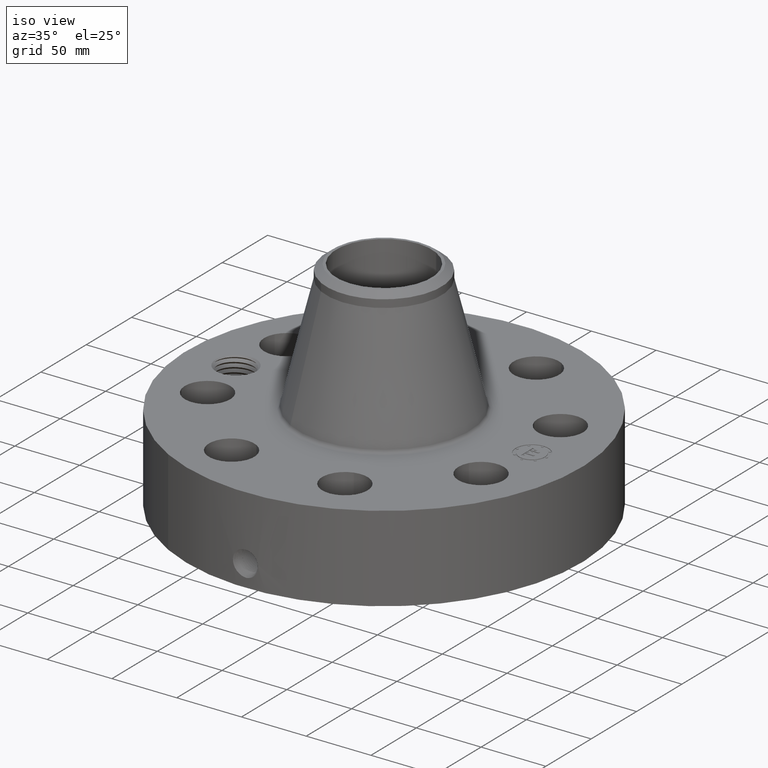
[diagram: clean part render]
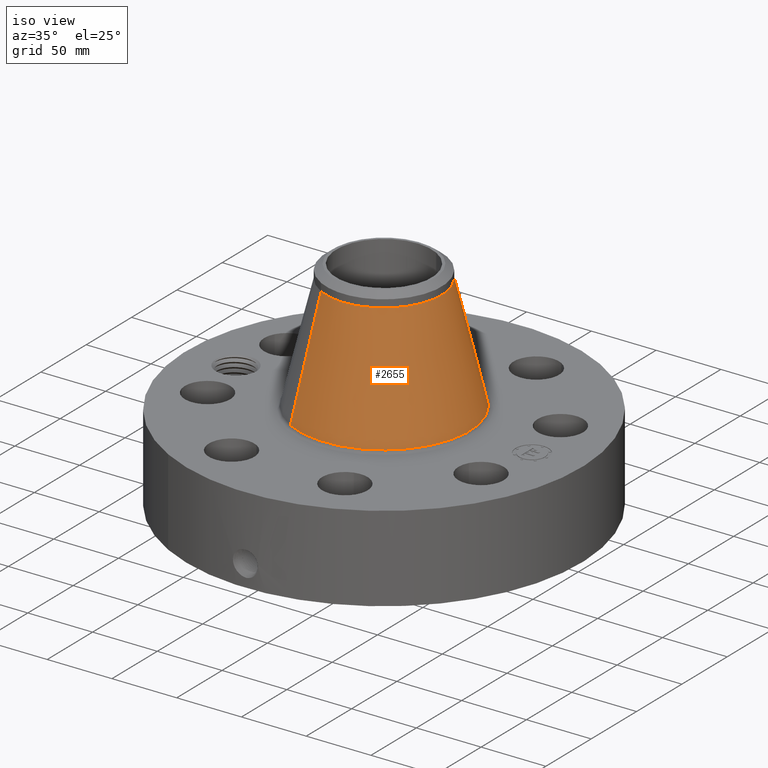
[diagram: same view with one face highlighted and labeled with its STEP entity id]
A machine part, iso view. The second image highlights one B-rep face of the part: STEP entity #2655.
In plain terms, the highlighted conical surface has half-angle 13.683 deg.
Its self-contained STEP definition (entity closure, byte-faithful):
#1885=AXIS2_PLACEMENT_3D('Circle Axis2P3D',#1883,#1884,$) ;
#2628=AXIS2_PLACEMENT_3D('Cone Axis2P3D',#2625,#2626,#2627) ;
#2639=AXIS2_PLACEMENT_3D('Circle Axis2P3D',#2637,#2638,$) ;
#1880=CARTESIAN_POINT('Vertex',(1.24779873299,2.28408025991,2.96161381106)) ;
#1883=CARTESIAN_POINT('Axis2P3D Location',(0.,0.,2.96161381106)) ;
#1887=CARTESIAN_POINT('Vertex',(-1.24779873299,-2.28408025991,2.96161381106)) ;
#2625=CARTESIAN_POINT('Axis2P3D Location',(0.,0.,6.46400087906)) ;
#2630=CARTESIAN_POINT('Line Origine',(1.04339671278,1.90992487161,4.71280734506)) ;
#2634=CARTESIAN_POINT('Vertex',(0.838994692561,1.53576948331,6.46400087906)) ;
#2637=CARTESIAN_POINT('Axis2P3D Location',(0.,0.,6.46400087906)) ;
#2641=CARTESIAN_POINT('Vertex',(-0.838994692561,-1.53576948331,6.46400087906)) ;
#2644=CARTESIAN_POINT('Line Origine',(-1.04339671278,-1.90992487161,4.71280734506)) ;
#1884=DIRECTION('Axis2P3D Direction',(0.,0.,-0.0393700787402)) ;
#2626=DIRECTION('Axis2P3D Direction',(0.,0.,-0.0393700787402)) ;
#2627=DIRECTION('Axis2P3D XDirection',(-0.0188750212049,-0.0345504945626,0.)) ;
#2631=DIRECTION('Vector Direction',(0.00446491598683,0.00817297389236,-0.0382527139298)) ;
#2638=DIRECTION('Axis2P3D Direction',(0.,0.,-0.0393700787402)) ;
#2645=DIRECTION('Vector Direction',(-0.00446491598683,-0.00817297389236,-0.0382527139298)) ;
#2632=VECTOR('Line Direction',#2631,0.0393700787402) ;
#2646=VECTOR('Line Direction',#2645,0.0393700787402) ;
#2650=ORIENTED_EDGE('',*,*,#1889,.F.) ;
#2651=ORIENTED_EDGE('',*,*,#2636,.T.) ;
#2652=ORIENTED_EDGE('',*,*,#2643,.T.) ;
#2653=ORIENTED_EDGE('',*,*,#2648,.F.) ;
#2655=ADVANCED_FACE('PartBody',(#2654),#2629,.T.) ;
#1886=CIRCLE('generated circle',#1885,2.60269558569) ;
#2640=CIRCLE('generated circle',#2639,1.75000000001) ;
#2629=CONICAL_SURFACE('Cone',#2628,1.75000000001,0.238815154699) ;
#1889=EDGE_CURVE('',#1881,#1888,#1886,.T.) ;
#2636=EDGE_CURVE('',#1881,#2635,#2633,.F.) ;
#2643=EDGE_CURVE('',#2635,#2642,#2640,.T.) ;
#2648=EDGE_CURVE('',#1888,#2642,#2647,.F.) ;
#2649=EDGE_LOOP('',(#2650,#2651,#2652,#2653)) ;
#2654=FACE_OUTER_BOUND('',#2649,.T.) ;
#2633=LINE('Line',#2630,#2632) ;
#2647=LINE('Line',#2644,#2646) ;
#1881=VERTEX_POINT('',#1880) ;
#1888=VERTEX_POINT('',#1887) ;
#2635=VERTEX_POINT('',#2634) ;
#2642=VERTEX_POINT('',#2641) ;